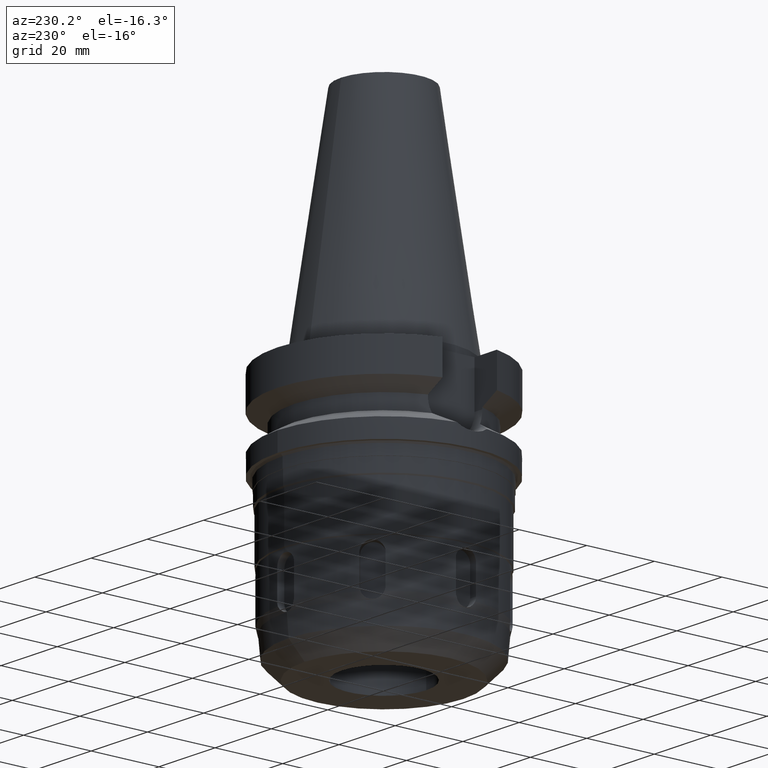
[diagram: clean part render]
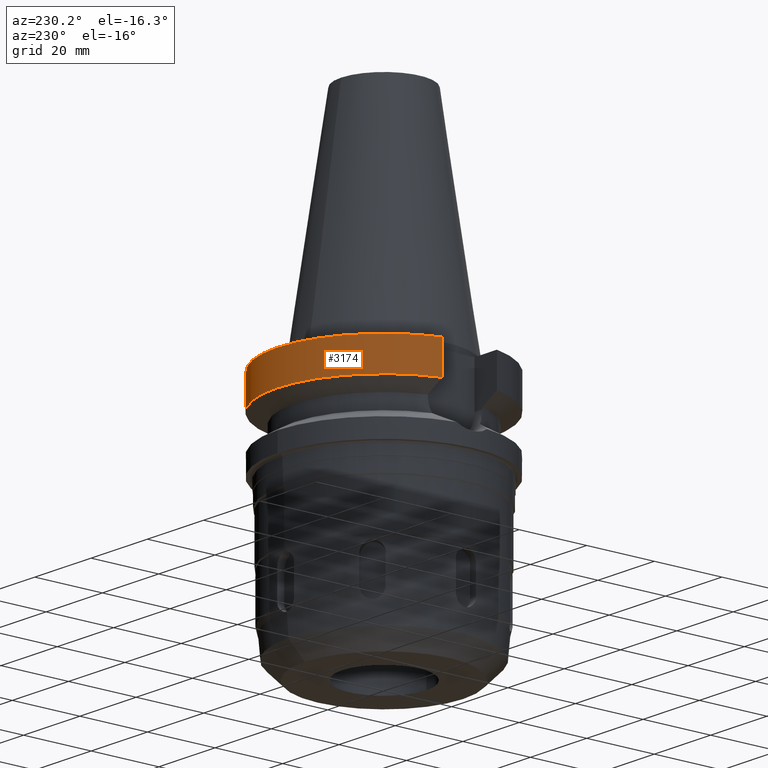
[diagram: same view with one face highlighted and labeled with its STEP entity id]
A machine part, auxiliary view. The second image highlights one B-rep face of the part: STEP entity #3174.
In plain terms, the highlighted cylindrical surface (partial cylindrical patch) has radius 31.5 mm, axis along (0, 0, -1).
Its self-contained STEP definition (entity closure, byte-faithful):
#108=CARTESIAN_POINT('',(0.E0,2.111536011090E-14,-2.E0));
#109=DIRECTION('',(0.E0,0.E0,-1.E0));
#110=DIRECTION('',(-9.667943721520E-1,2.555555555556E-1,0.E0));
#111=AXIS2_PLACEMENT_3D('',#108,#109,#110);
#116=CARTESIAN_POINT('',(0.E0,2.111536011090E-14,-2.E0));
#117=DIRECTION('',(0.E0,0.E0,-1.E0));
#118=DIRECTION('',(0.E0,1.E0,0.E0));
#119=AXIS2_PLACEMENT_3D('',#116,#117,#118);
#344=CARTESIAN_POINT('',(3.045402291450E1,8.049999274731E0,-1.156551218501E1));
#393=CARTESIAN_POINT('',(-3.045402162608E1,8.050004148946E0,-1.156546828073E1));
#414=CARTESIAN_POINT('',(0.E0,1.065333950388E-14,-1.156550565267E1));
#415=DIRECTION('',(0.E0,0.E0,1.E0));
#416=DIRECTION('',(9.667943721520E-1,2.555555555555E-1,0.E0));
#417=AXIS2_PLACEMENT_3D('',#414,#415,#416);
#422=CARTESIAN_POINT('',(0.E0,1.065333950388E-14,-1.156550565267E1));
#423=DIRECTION('',(0.E0,0.E0,1.E0));
#424=DIRECTION('',(0.E0,1.E0,0.E0));
#425=AXIS2_PLACEMENT_3D('',#422,#423,#424);
#430=DIRECTION('',(1.146524603738E-7,4.337420973835E-7,-9.999999999999E-1));
#431=VECTOR('',#430,9.565468280732E0);
#432=CARTESIAN_POINT('',(-3.045402272279E1,8.05E0,-2.E0));
#433=LINE('',#432,#431);
#437=DIRECTION('',(-2.004196717214E-8,7.582119821450E-8,1.E0));
#438=VECTOR('',#437,9.565512185011E0);
#439=CARTESIAN_POINT('',(3.045402291450E1,8.049999274731E0,-1.156551218501E1));
#440=LINE('',#439,#438);
#2763=CARTESIAN_POINT('',(-3.045402272279E1,8.05E0,-2.E0));
#2764=VERTEX_POINT('',#2763);
#2765=CARTESIAN_POINT('',(-3.317447654708E-14,3.15E1,-2.E0));
#2766=CARTESIAN_POINT('',(3.045402272279E1,8.05E0,-2.E0));
#2767=VERTEX_POINT('',#2765);
#2768=VERTEX_POINT('',#2766);
#2785=VERTEX_POINT('',#393);
#2790=VERTEX_POINT('',#344);
#2791=CARTESIAN_POINT('',(0.E0,3.15E1,-1.156550565267E1));
#2792=VERTEX_POINT('',#2791);
#3161=CARTESIAN_POINT('',(0.E0,2.111536011090E-14,7.242E1));
#3162=DIRECTION('',(0.E0,0.E0,-1.E0));
#3163=DIRECTION('',(0.E0,-1.E0,0.E0));
#3164=AXIS2_PLACEMENT_3D('',#3161,#3162,#3163);
#3165=CYLINDRICAL_SURFACE('',#3164,3.15E1);
#3166=ORIENTED_EDGE('',*,*,#3136,.T.);
#3167=ORIENTED_EDGE('',*,*,#3156,.F.);
#3168=ORIENTED_EDGE('',*,*,#3154,.F.);
#3169=ORIENTED_EDGE('',*,*,#3098,.T.);
#3170=ORIENTED_EDGE('',*,*,#2944,.F.);
#3171=ORIENTED_EDGE('',*,*,#2942,.F.);
#3172=EDGE_LOOP('',(#3166,#3167,#3168,#3169,#3170,#3171));
#3173=FACE_OUTER_BOUND('',#3172,.F.);
#112=CIRCLE('',#111,3.15E1);
#120=CIRCLE('',#119,3.15E1);
#418=CIRCLE('',#417,3.15E1);
#426=CIRCLE('',#425,3.15E1);
#2942=EDGE_CURVE('',#2764,#2767,#112,.T.);
#2944=EDGE_CURVE('',#2767,#2768,#120,.T.);
#3098=EDGE_CURVE('',#2790,#2768,#440,.T.);
#3136=EDGE_CURVE('',#2764,#2785,#433,.T.);
#3154=EDGE_CURVE('',#2790,#2792,#418,.T.);
#3156=EDGE_CURVE('',#2792,#2785,#426,.T.);
#3174=ADVANCED_FACE('',(#3173),#3165,.T.);